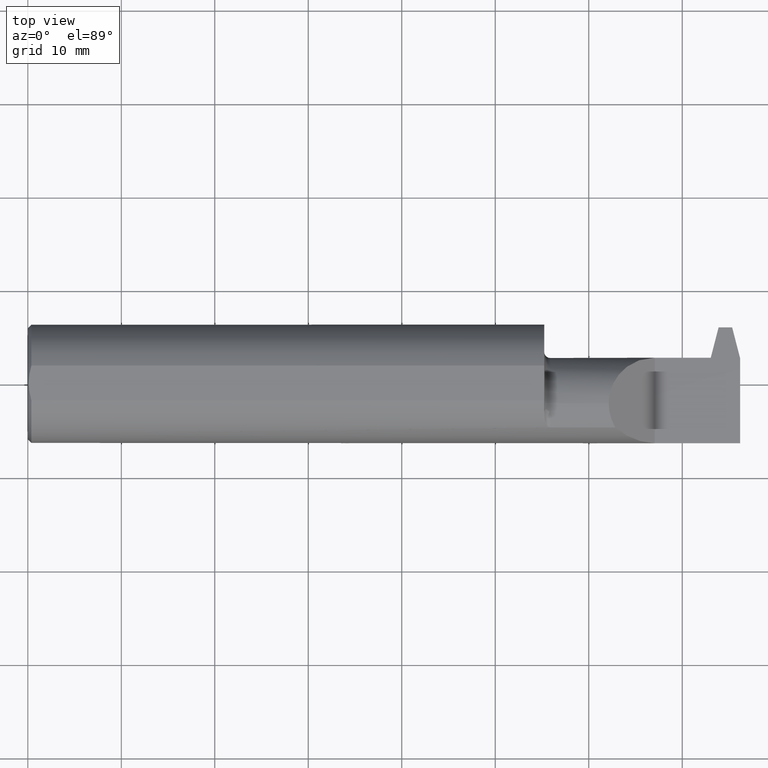
[diagram: clean part render]
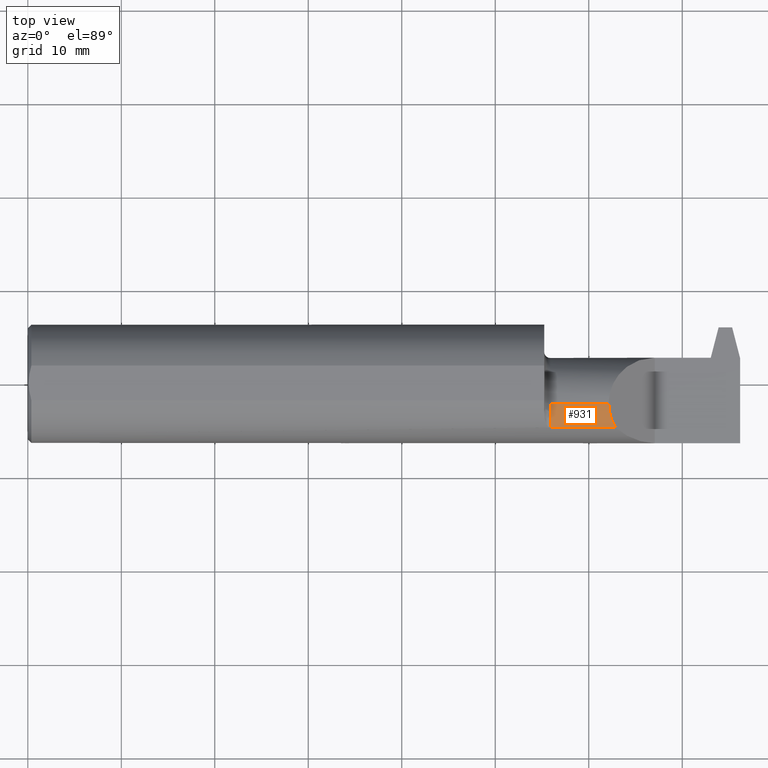
[diagram: same view with one face highlighted and labeled with its STEP entity id]
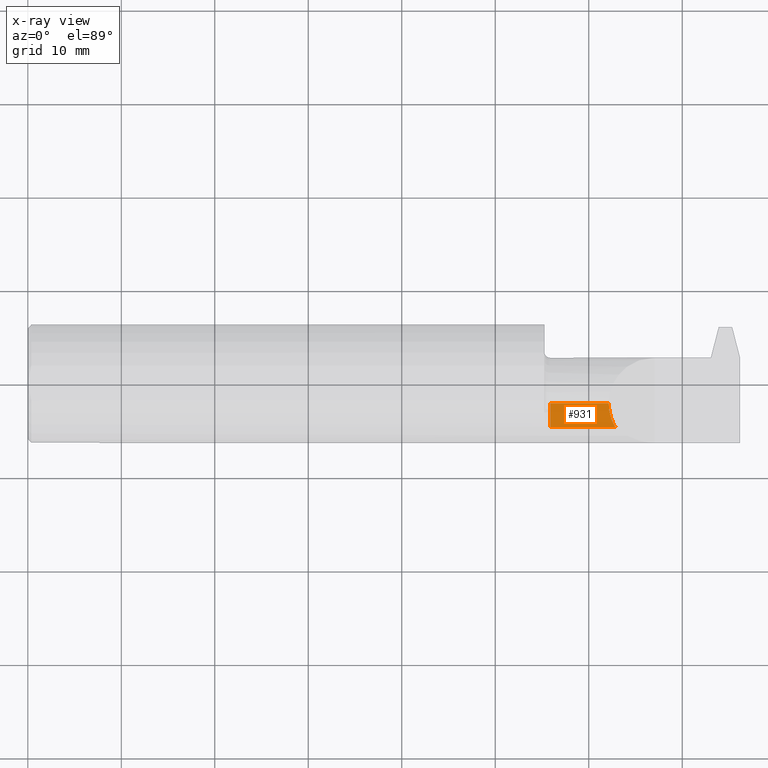
[diagram: x-ray of the same camera — body ghosted, the highlighted face saturated]
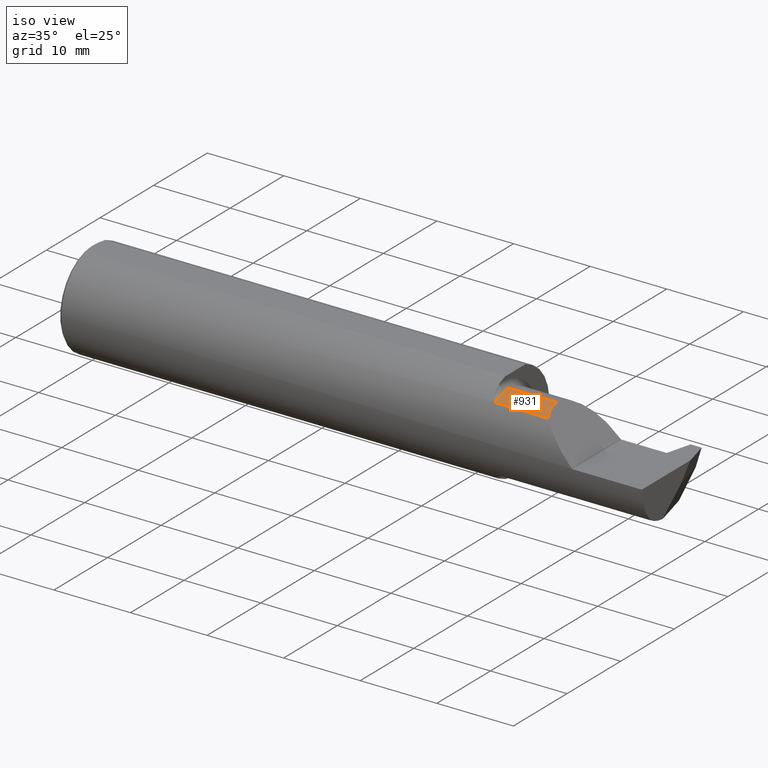
[diagram: same view with one face highlighted and labeled with its STEP entity id]
A machine part, top view. The second image highlights one B-rep face of the part: STEP entity #931.
The next image is the same camera in x-ray: the body ghosted, the highlighted face saturated — about 0% of this face is hidden behind the body in this view.
A second angle (iso view) of the same face is appended — the face is thin or edge-on in the first view.
In plain terms, the highlighted cylindrical surface (partial cylindrical patch) has radius 4.953 mm, axis along (-1, -0, -0).
Its self-contained STEP definition (entity closure, byte-faithful):
#1 = CARTESIAN_POINT ( 'NONE',  ( 2.446350000000000691, -0.08485000000000002263, 0.1950000000000000067 ) ) ;
#9 = DIRECTION ( 'NONE',  ( 0.000000000000000000, 0.000000000000000000, -1.000000000000000000 ) ) ;
#46 =( BOUNDED_CURVE ( )  B_SPLINE_CURVE ( 3, ( #1, #295, #620, #859 ),
 .UNSPECIFIED., .F., .F. ) 
 B_SPLINE_CURVE_WITH_KNOTS ( ( 4, 4 ),
 ( 0.000000000000000000, 0.5466004890170860220 ),
 .UNSPECIFIED. ) 
 CURVE ( )  GEOMETRIC_REPRESENTATION_ITEM ( )  RATIONAL_B_SPLINE_CURVE ( ( 1.000000000000000000, 0.9752569136661353166, 0.9752569136661353166, 1.000000000000000000 ) ) 
 REPRESENTATION_ITEM ( '' )  );
#78 = LINE ( 'NONE', #530, #173 ) ;
#130 = ORIENTED_EDGE ( 'NONE', *, *, #178, .T. ) ;
#138 = CYLINDRICAL_SURFACE ( 'NONE', #814, 0.1950000000000000067 ) ;
#152 = EDGE_CURVE ( 'NONE', #283, #938, #609, .T. ) ;
#173 = VECTOR ( 'NONE', #296, 39.37007874015748143 ) ;
#178 = EDGE_CURVE ( 'NONE', #726, #283, #78, .T. ) ;
#217 = DIRECTION ( 'NONE',  ( 0.000000000000000000, 0.000000000000000000, 1.000000000000000000 ) ) ;
#252 = EDGE_LOOP ( 'NONE', ( #917, #130, #791, #335 ) ) ;
#283 = VERTEX_POINT ( 'NONE', #781 ) ;
#295 = CARTESIAN_POINT ( 'NONE',  ( 2.446349999999999802, -0.1208286073214975276, 0.1950000000000000344 ) ) ;
#296 = DIRECTION ( 'NONE',  ( -1.000000000000000000, -0.000000000000000000, -0.000000000000000000 ) ) ;
#299 = VECTOR ( 'NONE', #665, 39.37007874015748143 ) ;
#335 = ORIENTED_EDGE ( 'NONE', *, *, #908, .T. ) ;
#338 = AXIS2_PLACEMENT_3D ( 'NONE', #699, #450, #9 ) ;
#354 = DIRECTION ( 'NONE',  ( -1.000000000000000000, -0.000000000000000000, -0.000000000000000000 ) ) ;
#357 = FACE_OUTER_BOUND ( 'NONE', #252, .T. ) ;
#443 = LINE ( 'NONE', #982, #299 ) ;
#450 = DIRECTION ( 'NONE',  ( 1.000000000000000000, 0.000000000000000000, 0.000000000000000000 ) ) ;
#530 = CARTESIAN_POINT ( 'NONE',  ( 2.175000000000000266, -0.08485000000000002263, 0.1950000000000000067 ) ) ;
#574 = CARTESIAN_POINT ( 'NONE',  ( 2.446350000000000691, -0.08485000000000002263, 0.1950000000000000067 ) ) ;
#605 = CARTESIAN_POINT ( 'NONE',  ( 2.474762187678658965, -0.1862082793164407668, 0.1665878123213410944 ) ) ;
#609 = CIRCLE ( 'NONE', #338, 0.1950000000000000067 ) ;
#620 = CARTESIAN_POINT ( 'NONE',  ( 2.456061009574511012, -0.1554718819623029658, 0.1852889904254893250 ) ) ;
#658 = CARTESIAN_POINT ( 'NONE',  ( 2.175000000000000266, -0.08485000000000002263, 0.000000000000000000 ) ) ;
#665 = DIRECTION ( 'NONE',  ( 1.000000000000000000, 0.000000000000000000, 0.000000000000000000 ) ) ;
#669 = CARTESIAN_POINT ( 'NONE',  ( 2.200000000000000178, -0.1862082793164408501, 0.1665878123213411499 ) ) ;
#672 = EDGE_CURVE ( 'NONE', #726, #841, #46, .T. ) ;
#699 = CARTESIAN_POINT ( 'NONE',  ( 2.200000000000000178, -0.08485000000000002263, 0.000000000000000000 ) ) ;
#726 = VERTEX_POINT ( 'NONE', #574 ) ;
#781 = CARTESIAN_POINT ( 'NONE',  ( 2.200000000000000178, -0.08485000000000002263, 0.1950000000000000067 ) ) ;
#791 = ORIENTED_EDGE ( 'NONE', *, *, #152, .T. ) ;
#814 = AXIS2_PLACEMENT_3D ( 'NONE', #658, #354, #217 ) ;
#841 = VERTEX_POINT ( 'NONE', #605 ) ;
#859 = CARTESIAN_POINT ( 'NONE',  ( 2.474762187678658965, -0.1862082793164407668, 0.1665878123213410944 ) ) ;
#908 = EDGE_CURVE ( 'NONE', #938, #841, #443, .T. ) ;
#917 = ORIENTED_EDGE ( 'NONE', *, *, #672, .F. ) ;
#931 = ADVANCED_FACE ( 'NONE', ( #357 ), #138, .T. ) ;
#938 = VERTEX_POINT ( 'NONE', #669 ) ;
#982 = CARTESIAN_POINT ( 'NONE',  ( 2.524999999999999911, -0.1862082793164408501, 0.1665878123213411499 ) ) ;